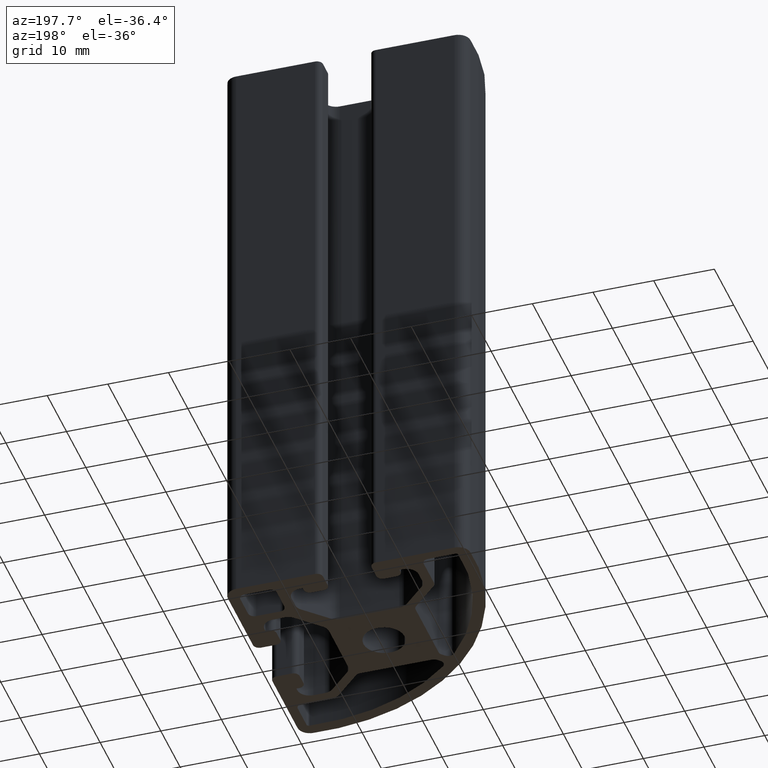
[diagram: clean part render]
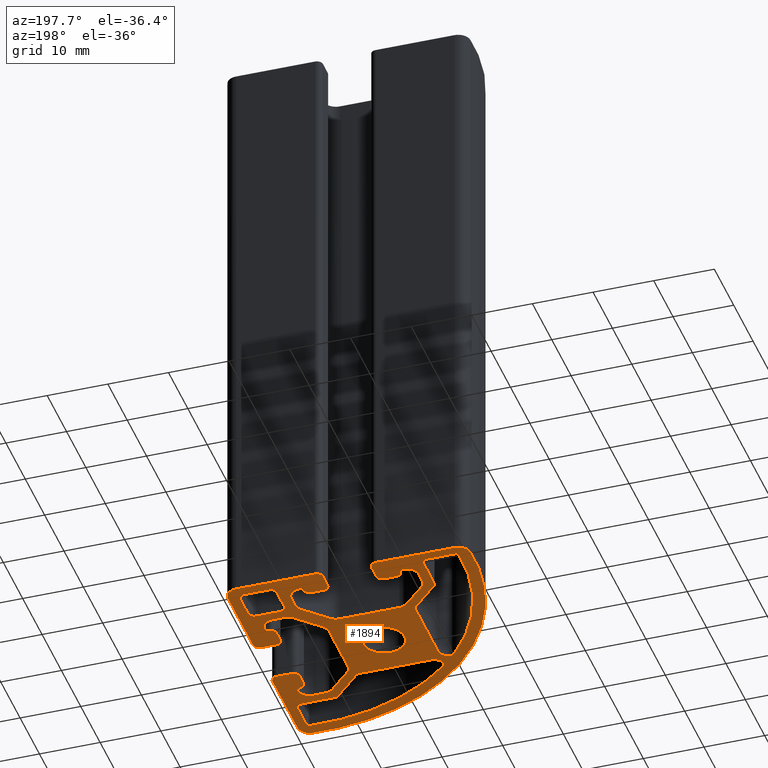
[diagram: same view with one face highlighted and labeled with its STEP entity id]
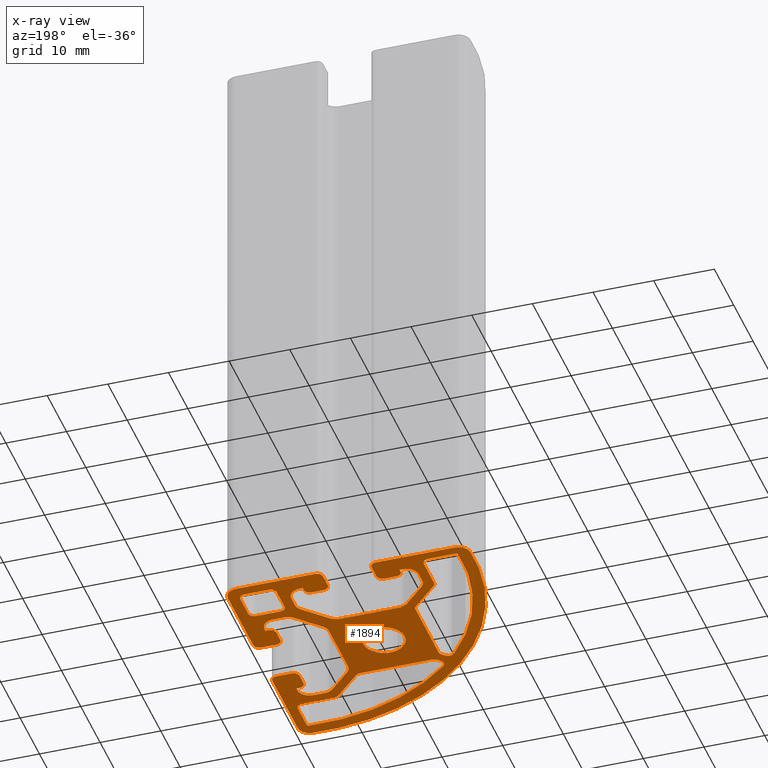
[diagram: x-ray of the same camera — body ghosted, the highlighted face saturated]
A machine part, auxiliary view. The second image highlights one B-rep face of the part: STEP entity #1894.
The next image is the same camera in x-ray: the body ghosted, the highlighted face saturated — about 0% of this face is hidden behind the body in this view.
In plain terms, the highlighted planar face has unit normal (0, 0, 1).
Its self-contained STEP definition (entity closure, byte-faithful):
#20=FACE_BOUND('',#360,.T.);
#21=FACE_BOUND('',#361,.T.);
#22=FACE_BOUND('',#362,.T.);
#23=FACE_BOUND('',#363,.T.);
#25=CIRCLE('',#1900,1.);
#27=CIRCLE('',#1904,1.);
#29=CIRCLE('',#1908,0.400000000000001);
#31=CIRCLE('',#1911,34.);
#33=CIRCLE('',#1914,1.);
#35=CIRCLE('',#1918,1.);
#37=CIRCLE('',#1922,1.00000000000001);
#39=CIRCLE('',#1926,0.999999999999993);
#41=CIRCLE('',#1930,1.);
#43=CIRCLE('',#1934,1.);
#45=CIRCLE('',#1937,34.0000000000857);
#47=CIRCLE('',#1940,0.4);
#49=CIRCLE('',#1944,1.);
#51=CIRCLE('',#1948,1.);
#53=CIRCLE('',#1951,3.4);
#54=CIRCLE('',#1953,36.);
#57=CIRCLE('',#1957,1.);
#59=CIRCLE('',#1960,1.);
#61=CIRCLE('',#1964,1.);
#63=CIRCLE('',#1968,1.);
#65=CIRCLE('',#1973,1.99999600810224);
#67=CIRCLE('',#1977,1.99999600810224);
#69=CIRCLE('',#1981,1.99999600810224);
#71=CIRCLE('',#1985,1.99999600810224);
#73=CIRCLE('',#1989,1.99999600810225);
#75=CIRCLE('',#1993,1.99999600810224);
#77=CIRCLE('',#1998,1.);
#79=CIRCLE('',#2002,1.);
#81=CIRCLE('',#2006,1.);
#83=CIRCLE('',#2010,1.);
#85=CIRCLE('',#2014,1.);
#87=CIRCLE('',#2019,1.99999600810224);
#89=CIRCLE('',#2023,1.99999600810224);
#91=CIRCLE('',#2027,1.99999600810225);
#93=CIRCLE('',#2031,1.99999600810224);
#95=CIRCLE('',#2035,1.99999600810225);
#97=CIRCLE('',#2039,1.99999600810225);
#99=CIRCLE('',#2044,1.);
#101=CIRCLE('',#2048,1.);
#103=CIRCLE('',#2052,1.);
#105=CIRCLE('',#2056,1.);
#107=CIRCLE('',#2060,1.);
#109=CIRCLE('',#2064,1.);
#111=CIRCLE('',#2068,1.);
#115=CIRCLE('',#2078,2.);
#116=CIRCLE('',#2080,2.);
#117=CIRCLE('',#2083,2.);
#259=FACE_OUTER_BOUND('',#359,.T.);
#359=EDGE_LOOP('',(#1659,#1660,#1661,#1662,#1663,#1664,#1665,#1666,#1667,
#1668,#1669,#1670,#1671,#1672,#1673,#1674,#1675,#1676,#1677,#1678,#1679,
#1680,#1681,#1682,#1683,#1684,#1685,#1686,#1687,#1688,#1689,#1690,#1691,
#1692,#1693,#1694,#1695,#1696,#1697,#1698,#1699,#1700,#1701,#1702,#1703,
#1704,#1705,#1706,#1707,#1708,#1709,#1710,#1711,#1712,#1713,#1714,#1715,
#1716,#1717,#1718));
#360=EDGE_LOOP('',(#1719,#1720,#1721,#1722,#1723,#1724,#1725,#1726,#1727,
#1728,#1729,#1730));
#361=EDGE_LOOP('',(#1731,#1732,#1733,#1734,#1735,#1736,#1737,#1738,#1739,
#1740,#1741,#1742));
#362=EDGE_LOOP('',(#1743));
#363=EDGE_LOOP('',(#1744,#1745,#1746,#1747,#1748,#1749,#1750,#1751));
#366=LINE('',#2658,#550);
#370=LINE('',#2670,#554);
#374=LINE('',#2682,#558);
#380=LINE('',#2706,#564);
#384=LINE('',#2718,#568);
#388=LINE('',#2730,#572);
#392=LINE('',#2742,#576);
#396=LINE('',#2754,#580);
#402=LINE('',#2778,#586);
#406=LINE('',#2790,#590);
#416=LINE('',#2832,#600);
#420=LINE('',#2844,#604);
#424=LINE('',#2856,#608);
#427=LINE('',#2862,#611);
#431=LINE('',#2874,#615);
#435=LINE('',#2886,#619);
#439=LINE('',#2898,#623);
#443=LINE('',#2910,#627);
#447=LINE('',#2922,#631);
#451=LINE('',#2934,#635);
#454=LINE('',#2940,#638);
#458=LINE('',#2952,#642);
#461=LINE('',#2961,#645);
#465=LINE('',#2975,#649);
#469=LINE('',#2987,#653);
#473=LINE('',#2999,#657);
#476=LINE('',#3005,#660);
#480=LINE('',#3017,#664);
#484=LINE('',#3029,#668);
#488=LINE('',#3041,#672);
#492=LINE('',#3053,#676);
#496=LINE('',#3065,#680);
#500=LINE('',#3077,#684);
#503=LINE('',#3083,#687);
#507=LINE('',#3095,#691);
#511=LINE('',#3107,#695);
#516=LINE('',#3122,#700);
#521=LINE('',#3135,#705);
#525=LINE('',#3147,#709);
#529=LINE('',#3159,#713);
#532=LINE('',#3168,#716);
#533=LINE('',#3171,#717);
#536=LINE('',#3177,#720);
#541=LINE('',#3186,#725);
#545=LINE('',#3202,#729);
#547=LINE('',#3208,#731);
#550=VECTOR('',#2092,6.10121933088198);
#554=VECTOR('',#2104,5.38076118445748);
#558=VECTOR('',#2116,4.499253328166);
#564=VECTOR('',#2142,0.615466326185701);
#568=VECTOR('',#2154,11.9452272785248);
#572=VECTOR('',#2166,6.10121933088197);
#576=VECTOR('',#2178,11.9452272785248);
#580=VECTOR('',#2190,0.615466326185706);
#586=VECTOR('',#2216,4.49925332816598);
#590=VECTOR('',#2228,5.38076118445749);
#600=VECTOR('',#2270,2.5);
#604=VECTOR('',#2282,2.);
#608=VECTOR('',#2294,0.5);
#611=VECTOR('',#2299,0.500003991897749);
#615=VECTOR('',#2311,1.9038115676834);
#619=VECTOR('',#2323,5.08578974462328);
#623=VECTOR('',#2335,9.80761515157127);
#627=VECTOR('',#2347,5.08578974462329);
#631=VECTOR('',#2359,1.9038115676834);
#635=VECTOR('',#2371,0.500003991897748);
#638=VECTOR('',#2376,0.499999999999987);
#642=VECTOR('',#2388,2.00000000000001);
#645=VECTOR('',#2399,2.49999999999999);
#649=VECTOR('',#2411,2.5);
#653=VECTOR('',#2423,2.);
#657=VECTOR('',#2435,0.499999999999994);
#660=VECTOR('',#2440,0.500003991897758);
#664=VECTOR('',#2452,1.90381156768339);
#668=VECTOR('',#2464,5.08578974462329);
#672=VECTOR('',#2476,9.80761515157127);
#676=VECTOR('',#2488,5.08578974462328);
#680=VECTOR('',#2500,1.90381156768339);
#684=VECTOR('',#2512,0.500008218613461);
#687=VECTOR('',#2517,0.499999751365252);
#691=VECTOR('',#2529,2.00000000000001);
#695=VECTOR('',#2541,2.5);
#700=VECTOR('',#2554,4.);
#705=VECTOR('',#2567,4.00000000000001);
#709=VECTOR('',#2579,4.);
#713=VECTOR('',#2591,4.);
#716=VECTOR('',#2602,4.18510259352965);
#717=VECTOR('',#2605,12.9999960154547);
#720=VECTOR('',#2610,13.0000039845453);
#725=VECTOR('',#2617,13.0000002421704);
#729=VECTOR('',#2639,13.0000039845452);
#731=VECTOR('',#2647,4.18503525331706);
#734=VERTEX_POINT('',#2655);
#735=VERTEX_POINT('',#2657);
#737=VERTEX_POINT('',#2663);
#739=VERTEX_POINT('',#2669);
#741=VERTEX_POINT('',#2675);
#743=VERTEX_POINT('',#2681);
#745=VERTEX_POINT('',#2687);
#747=VERTEX_POINT('',#2693);
#749=VERTEX_POINT('',#2699);
#751=VERTEX_POINT('',#2705);
#753=VERTEX_POINT('',#2711);
#755=VERTEX_POINT('',#2717);
#758=VERTEX_POINT('',#2727);
#759=VERTEX_POINT('',#2729);
#761=VERTEX_POINT('',#2735);
#763=VERTEX_POINT('',#2741);
#765=VERTEX_POINT('',#2747);
#767=VERTEX_POINT('',#2753);
#769=VERTEX_POINT('',#2759);
#771=VERTEX_POINT('',#2765);
#773=VERTEX_POINT('',#2771);
#775=VERTEX_POINT('',#2777);
#777=VERTEX_POINT('',#2783);
#779=VERTEX_POINT('',#2789);
#781=VERTEX_POINT('',#2798);
#782=VERTEX_POINT('',#2801);
#784=VERTEX_POINT('',#2804);
#788=VERTEX_POINT('',#2813);
#789=VERTEX_POINT('',#2815);
#792=VERTEX_POINT('',#2822);
#793=VERTEX_POINT('',#2824);
#795=VERTEX_POINT('',#2830);
#797=VERTEX_POINT('',#2836);
#799=VERTEX_POINT('',#2842);
#801=VERTEX_POINT('',#2848);
#803=VERTEX_POINT('',#2854);
#805=VERTEX_POINT('',#2860);
#807=VERTEX_POINT('',#2866);
#809=VERTEX_POINT('',#2872);
#811=VERTEX_POINT('',#2878);
#813=VERTEX_POINT('',#2884);
#815=VERTEX_POINT('',#2890);
#817=VERTEX_POINT('',#2896);
#819=VERTEX_POINT('',#2902);
#821=VERTEX_POINT('',#2908);
#823=VERTEX_POINT('',#2914);
#825=VERTEX_POINT('',#2920);
#827=VERTEX_POINT('',#2926);
#829=VERTEX_POINT('',#2932);
#831=VERTEX_POINT('',#2938);
#833=VERTEX_POINT('',#2944);
#835=VERTEX_POINT('',#2950);
#837=VERTEX_POINT('',#2956);
#840=VERTEX_POINT('',#2966);
#841=VERTEX_POINT('',#2968);
#843=VERTEX_POINT('',#2974);
#845=VERTEX_POINT('',#2980);
#847=VERTEX_POINT('',#2986);
#849=VERTEX_POINT('',#2992);
#851=VERTEX_POINT('',#2998);
#853=VERTEX_POINT('',#3004);
#855=VERTEX_POINT('',#3010);
#857=VERTEX_POINT('',#3016);
#859=VERTEX_POINT('',#3022);
#861=VERTEX_POINT('',#3028);
#863=VERTEX_POINT('',#3034);
#865=VERTEX_POINT('',#3040);
#867=VERTEX_POINT('',#3046);
#869=VERTEX_POINT('',#3052);
#871=VERTEX_POINT('',#3058);
#873=VERTEX_POINT('',#3064);
#875=VERTEX_POINT('',#3070);
#877=VERTEX_POINT('',#3076);
#879=VERTEX_POINT('',#3082);
#881=VERTEX_POINT('',#3088);
#883=VERTEX_POINT('',#3094);
#885=VERTEX_POINT('',#3100);
#887=VERTEX_POINT('',#3106);
#889=VERTEX_POINT('',#3112);
#892=VERTEX_POINT('',#3119);
#893=VERTEX_POINT('',#3121);
#895=VERTEX_POINT('',#3127);
#897=VERTEX_POINT('',#3133);
#899=VERTEX_POINT('',#3139);
#901=VERTEX_POINT('',#3145);
#903=VERTEX_POINT('',#3151);
#905=VERTEX_POINT('',#3157);
#907=VERTEX_POINT('',#3166);
#908=VERTEX_POINT('',#3170);
#910=VERTEX_POINT('',#3176);
#913=VERTEX_POINT('',#3184);
#916=VERTEX_POINT('',#3200);
#917=VERTEX_POINT('',#3204);
#920=EDGE_CURVE('',#735,#734,#366,.T.);
#923=EDGE_CURVE('',#737,#735,#25,.T.);
#926=EDGE_CURVE('',#739,#737,#370,.T.);
#929=EDGE_CURVE('',#741,#739,#27,.T.);
#932=EDGE_CURVE('',#743,#741,#374,.T.);
#935=EDGE_CURVE('',#745,#743,#29,.T.);
#938=EDGE_CURVE('',#747,#745,#31,.T.);
#941=EDGE_CURVE('',#749,#747,#33,.T.);
#944=EDGE_CURVE('',#751,#749,#380,.T.);
#947=EDGE_CURVE('',#753,#751,#35,.T.);
#950=EDGE_CURVE('',#755,#753,#384,.T.);
#953=EDGE_CURVE('',#734,#755,#37,.T.);
#956=EDGE_CURVE('',#759,#758,#388,.T.);
#959=EDGE_CURVE('',#761,#759,#39,.T.);
#962=EDGE_CURVE('',#763,#761,#392,.T.);
#965=EDGE_CURVE('',#765,#763,#41,.T.);
#968=EDGE_CURVE('',#767,#765,#396,.T.);
#971=EDGE_CURVE('',#769,#767,#43,.T.);
#974=EDGE_CURVE('',#771,#769,#45,.T.);
#977=EDGE_CURVE('',#773,#771,#47,.T.);
#980=EDGE_CURVE('',#775,#773,#402,.T.);
#983=EDGE_CURVE('',#777,#775,#49,.T.);
#986=EDGE_CURVE('',#779,#777,#406,.T.);
#989=EDGE_CURVE('',#758,#779,#51,.T.);
#991=EDGE_CURVE('',#781,#781,#53,.T.);
#993=EDGE_CURVE('',#784,#782,#54,.T.);
#998=EDGE_CURVE('',#789,#788,#57,.T.);
#1002=EDGE_CURVE('',#793,#792,#59,.T.);
#1006=EDGE_CURVE('',#792,#795,#416,.T.);
#1009=EDGE_CURVE('',#795,#797,#61,.T.);
#1012=EDGE_CURVE('',#797,#799,#420,.T.);
#1015=EDGE_CURVE('',#799,#801,#63,.T.);
#1018=EDGE_CURVE('',#801,#803,#424,.T.);
#1021=EDGE_CURVE('',#803,#805,#427,.T.);
#1024=EDGE_CURVE('',#805,#807,#65,.T.);
#1027=EDGE_CURVE('',#807,#809,#431,.T.);
#1030=EDGE_CURVE('',#809,#811,#67,.T.);
#1033=EDGE_CURVE('',#811,#813,#435,.T.);
#1036=EDGE_CURVE('',#813,#815,#69,.T.);
#1039=EDGE_CURVE('',#815,#817,#439,.T.);
#1042=EDGE_CURVE('',#817,#819,#71,.T.);
#1045=EDGE_CURVE('',#819,#821,#443,.T.);
#1048=EDGE_CURVE('',#821,#823,#73,.T.);
#1051=EDGE_CURVE('',#823,#825,#447,.T.);
#1054=EDGE_CURVE('',#825,#827,#75,.T.);
#1057=EDGE_CURVE('',#827,#829,#451,.T.);
#1060=EDGE_CURVE('',#829,#831,#454,.T.);
#1063=EDGE_CURVE('',#831,#833,#77,.T.);
#1066=EDGE_CURVE('',#833,#835,#458,.T.);
#1069=EDGE_CURVE('',#835,#837,#79,.T.);
#1071=EDGE_CURVE('',#837,#789,#461,.T.);
#1074=EDGE_CURVE('',#841,#840,#81,.T.);
#1077=EDGE_CURVE('',#843,#841,#465,.T.);
#1080=EDGE_CURVE('',#845,#843,#83,.T.);
#1083=EDGE_CURVE('',#847,#845,#469,.T.);
#1086=EDGE_CURVE('',#849,#847,#85,.T.);
#1089=EDGE_CURVE('',#851,#849,#473,.T.);
#1092=EDGE_CURVE('',#853,#851,#476,.T.);
#1095=EDGE_CURVE('',#855,#853,#87,.T.);
#1098=EDGE_CURVE('',#857,#855,#480,.T.);
#1101=EDGE_CURVE('',#859,#857,#89,.T.);
#1104=EDGE_CURVE('',#861,#859,#484,.T.);
#1107=EDGE_CURVE('',#863,#861,#91,.T.);
#1110=EDGE_CURVE('',#865,#863,#488,.T.);
#1113=EDGE_CURVE('',#867,#865,#93,.T.);
#1116=EDGE_CURVE('',#869,#867,#492,.T.);
#1119=EDGE_CURVE('',#871,#869,#95,.T.);
#1122=EDGE_CURVE('',#873,#871,#496,.T.);
#1125=EDGE_CURVE('',#875,#873,#97,.T.);
#1128=EDGE_CURVE('',#877,#875,#500,.T.);
#1131=EDGE_CURVE('',#879,#877,#503,.T.);
#1134=EDGE_CURVE('',#881,#879,#99,.T.);
#1137=EDGE_CURVE('',#883,#881,#507,.T.);
#1140=EDGE_CURVE('',#885,#883,#101,.T.);
#1143=EDGE_CURVE('',#887,#885,#511,.T.);
#1146=EDGE_CURVE('',#889,#887,#103,.T.);
#1150=EDGE_CURVE('',#893,#892,#516,.T.);
#1154=EDGE_CURVE('',#892,#895,#105,.T.);
#1157=EDGE_CURVE('',#895,#897,#521,.T.);
#1160=EDGE_CURVE('',#897,#899,#107,.T.);
#1163=EDGE_CURVE('',#899,#901,#525,.T.);
#1166=EDGE_CURVE('',#901,#903,#109,.T.);
#1169=EDGE_CURVE('',#903,#905,#529,.T.);
#1171=EDGE_CURVE('',#905,#893,#111,.T.);
#1174=EDGE_CURVE('',#782,#907,#532,.T.);
#1175=EDGE_CURVE('',#908,#793,#533,.T.);
#1178=EDGE_CURVE('',#910,#889,#536,.T.);
#1183=EDGE_CURVE('',#840,#913,#541,.T.);
#1189=EDGE_CURVE('',#907,#910,#115,.T.);
#1190=EDGE_CURVE('',#913,#908,#116,.T.);
#1192=EDGE_CURVE('',#788,#916,#545,.T.);
#1194=EDGE_CURVE('',#916,#917,#117,.T.);
#1195=EDGE_CURVE('',#917,#784,#547,.T.);
#1659=ORIENTED_EDGE('',*,*,#993,.T.);
#1660=ORIENTED_EDGE('',*,*,#1174,.T.);
#1661=ORIENTED_EDGE('',*,*,#1189,.T.);
#1662=ORIENTED_EDGE('',*,*,#1178,.T.);
#1663=ORIENTED_EDGE('',*,*,#1146,.T.);
#1664=ORIENTED_EDGE('',*,*,#1143,.T.);
#1665=ORIENTED_EDGE('',*,*,#1140,.T.);
#1666=ORIENTED_EDGE('',*,*,#1137,.T.);
#1667=ORIENTED_EDGE('',*,*,#1134,.T.);
#1668=ORIENTED_EDGE('',*,*,#1131,.T.);
#1669=ORIENTED_EDGE('',*,*,#1128,.T.);
#1670=ORIENTED_EDGE('',*,*,#1125,.T.);
#1671=ORIENTED_EDGE('',*,*,#1122,.T.);
#1672=ORIENTED_EDGE('',*,*,#1119,.T.);
#1673=ORIENTED_EDGE('',*,*,#1116,.T.);
#1674=ORIENTED_EDGE('',*,*,#1113,.T.);
#1675=ORIENTED_EDGE('',*,*,#1110,.T.);
#1676=ORIENTED_EDGE('',*,*,#1107,.T.);
#1677=ORIENTED_EDGE('',*,*,#1104,.T.);
#1678=ORIENTED_EDGE('',*,*,#1101,.T.);
#1679=ORIENTED_EDGE('',*,*,#1098,.T.);
#1680=ORIENTED_EDGE('',*,*,#1095,.T.);
#1681=ORIENTED_EDGE('',*,*,#1092,.T.);
#1682=ORIENTED_EDGE('',*,*,#1089,.T.);
#1683=ORIENTED_EDGE('',*,*,#1086,.T.);
#1684=ORIENTED_EDGE('',*,*,#1083,.T.);
#1685=ORIENTED_EDGE('',*,*,#1080,.T.);
#1686=ORIENTED_EDGE('',*,*,#1077,.T.);
#1687=ORIENTED_EDGE('',*,*,#1074,.T.);
#1688=ORIENTED_EDGE('',*,*,#1183,.T.);
#1689=ORIENTED_EDGE('',*,*,#1190,.T.);
#1690=ORIENTED_EDGE('',*,*,#1175,.T.);
#1691=ORIENTED_EDGE('',*,*,#1002,.T.);
#1692=ORIENTED_EDGE('',*,*,#1006,.T.);
#1693=ORIENTED_EDGE('',*,*,#1009,.T.);
#1694=ORIENTED_EDGE('',*,*,#1012,.T.);
#1695=ORIENTED_EDGE('',*,*,#1015,.T.);
#1696=ORIENTED_EDGE('',*,*,#1018,.T.);
#1697=ORIENTED_EDGE('',*,*,#1021,.T.);
#1698=ORIENTED_EDGE('',*,*,#1024,.T.);
#1699=ORIENTED_EDGE('',*,*,#1027,.T.);
#1700=ORIENTED_EDGE('',*,*,#1030,.T.);
#1701=ORIENTED_EDGE('',*,*,#1033,.T.);
#1702=ORIENTED_EDGE('',*,*,#1036,.T.);
#1703=ORIENTED_EDGE('',*,*,#1039,.T.);
#1704=ORIENTED_EDGE('',*,*,#1042,.T.);
#1705=ORIENTED_EDGE('',*,*,#1045,.T.);
#1706=ORIENTED_EDGE('',*,*,#1048,.T.);
#1707=ORIENTED_EDGE('',*,*,#1051,.T.);
#1708=ORIENTED_EDGE('',*,*,#1054,.T.);
#1709=ORIENTED_EDGE('',*,*,#1057,.T.);
#1710=ORIENTED_EDGE('',*,*,#1060,.T.);
#1711=ORIENTED_EDGE('',*,*,#1063,.T.);
#1712=ORIENTED_EDGE('',*,*,#1066,.T.);
#1713=ORIENTED_EDGE('',*,*,#1069,.T.);
#1714=ORIENTED_EDGE('',*,*,#1071,.T.);
#1715=ORIENTED_EDGE('',*,*,#998,.T.);
#1716=ORIENTED_EDGE('',*,*,#1192,.T.);
#1717=ORIENTED_EDGE('',*,*,#1194,.T.);
#1718=ORIENTED_EDGE('',*,*,#1195,.T.);
#1719=ORIENTED_EDGE('',*,*,#920,.T.);
#1720=ORIENTED_EDGE('',*,*,#953,.T.);
#1721=ORIENTED_EDGE('',*,*,#950,.T.);
#1722=ORIENTED_EDGE('',*,*,#947,.T.);
#1723=ORIENTED_EDGE('',*,*,#944,.T.);
#1724=ORIENTED_EDGE('',*,*,#941,.T.);
#1725=ORIENTED_EDGE('',*,*,#938,.T.);
#1726=ORIENTED_EDGE('',*,*,#935,.T.);
#1727=ORIENTED_EDGE('',*,*,#932,.T.);
#1728=ORIENTED_EDGE('',*,*,#929,.T.);
#1729=ORIENTED_EDGE('',*,*,#926,.T.);
#1730=ORIENTED_EDGE('',*,*,#923,.T.);
#1731=ORIENTED_EDGE('',*,*,#956,.T.);
#1732=ORIENTED_EDGE('',*,*,#989,.T.);
#1733=ORIENTED_EDGE('',*,*,#986,.T.);
#1734=ORIENTED_EDGE('',*,*,#983,.T.);
#1735=ORIENTED_EDGE('',*,*,#980,.T.);
#1736=ORIENTED_EDGE('',*,*,#977,.T.);
#1737=ORIENTED_EDGE('',*,*,#974,.T.);
#1738=ORIENTED_EDGE('',*,*,#971,.T.);
#1739=ORIENTED_EDGE('',*,*,#968,.T.);
#1740=ORIENTED_EDGE('',*,*,#965,.T.);
#1741=ORIENTED_EDGE('',*,*,#962,.T.);
#1742=ORIENTED_EDGE('',*,*,#959,.T.);
#1743=ORIENTED_EDGE('',*,*,#991,.T.);
#1744=ORIENTED_EDGE('',*,*,#1150,.T.);
#1745=ORIENTED_EDGE('',*,*,#1154,.T.);
#1746=ORIENTED_EDGE('',*,*,#1157,.T.);
#1747=ORIENTED_EDGE('',*,*,#1160,.T.);
#1748=ORIENTED_EDGE('',*,*,#1163,.T.);
#1749=ORIENTED_EDGE('',*,*,#1166,.T.);
#1750=ORIENTED_EDGE('',*,*,#1169,.T.);
#1751=ORIENTED_EDGE('',*,*,#1171,.T.);
#1799=PLANE('',#2085);
#1894=ADVANCED_FACE('',(#259,#20,#21,#22,#23),#1799,.F.);
#1900=AXIS2_PLACEMENT_3D('',#2664,#2098,#2099);
#1904=AXIS2_PLACEMENT_3D('',#2676,#2110,#2111);
#1908=AXIS2_PLACEMENT_3D('',#2688,#2122,#2123);
#1911=AXIS2_PLACEMENT_3D('',#2694,#2129,#2130);
#1914=AXIS2_PLACEMENT_3D('',#2700,#2136,#2137);
#1918=AXIS2_PLACEMENT_3D('',#2712,#2148,#2149);
#1922=AXIS2_PLACEMENT_3D('',#2722,#2160,#2161);
#1926=AXIS2_PLACEMENT_3D('',#2736,#2172,#2173);
#1930=AXIS2_PLACEMENT_3D('',#2748,#2184,#2185);
#1934=AXIS2_PLACEMENT_3D('',#2760,#2196,#2197);
#1937=AXIS2_PLACEMENT_3D('',#2766,#2203,#2204);
#1940=AXIS2_PLACEMENT_3D('',#2772,#2210,#2211);
#1944=AXIS2_PLACEMENT_3D('',#2784,#2222,#2223);
#1948=AXIS2_PLACEMENT_3D('',#2794,#2234,#2235);
#1951=AXIS2_PLACEMENT_3D('',#2799,#2240,#2241);
#1953=AXIS2_PLACEMENT_3D('',#2805,#2245,#2246);
#1957=AXIS2_PLACEMENT_3D('',#2816,#2255,#2256);
#1960=AXIS2_PLACEMENT_3D('',#2825,#2263,#2264);
#1964=AXIS2_PLACEMENT_3D('',#2838,#2276,#2277);
#1968=AXIS2_PLACEMENT_3D('',#2850,#2288,#2289);
#1973=AXIS2_PLACEMENT_3D('',#2868,#2305,#2306);
#1977=AXIS2_PLACEMENT_3D('',#2880,#2317,#2318);
#1981=AXIS2_PLACEMENT_3D('',#2892,#2329,#2330);
#1985=AXIS2_PLACEMENT_3D('',#2904,#2341,#2342);
#1989=AXIS2_PLACEMENT_3D('',#2916,#2353,#2354);
#1993=AXIS2_PLACEMENT_3D('',#2928,#2365,#2366);
#1998=AXIS2_PLACEMENT_3D('',#2946,#2382,#2383);
#2002=AXIS2_PLACEMENT_3D('',#2958,#2394,#2395);
#2006=AXIS2_PLACEMENT_3D('',#2969,#2405,#2406);
#2010=AXIS2_PLACEMENT_3D('',#2981,#2417,#2418);
#2014=AXIS2_PLACEMENT_3D('',#2993,#2429,#2430);
#2019=AXIS2_PLACEMENT_3D('',#3011,#2446,#2447);
#2023=AXIS2_PLACEMENT_3D('',#3023,#2458,#2459);
#2027=AXIS2_PLACEMENT_3D('',#3035,#2470,#2471);
#2031=AXIS2_PLACEMENT_3D('',#3047,#2482,#2483);
#2035=AXIS2_PLACEMENT_3D('',#3059,#2494,#2495);
#2039=AXIS2_PLACEMENT_3D('',#3071,#2506,#2507);
#2044=AXIS2_PLACEMENT_3D('',#3089,#2523,#2524);
#2048=AXIS2_PLACEMENT_3D('',#3101,#2535,#2536);
#2052=AXIS2_PLACEMENT_3D('',#3113,#2547,#2548);
#2056=AXIS2_PLACEMENT_3D('',#3129,#2561,#2562);
#2060=AXIS2_PLACEMENT_3D('',#3141,#2573,#2574);
#2064=AXIS2_PLACEMENT_3D('',#3153,#2585,#2586);
#2068=AXIS2_PLACEMENT_3D('',#3162,#2596,#2597);
#2078=AXIS2_PLACEMENT_3D('',#3196,#2630,#2631);
#2080=AXIS2_PLACEMENT_3D('',#3198,#2634,#2635);
#2083=AXIS2_PLACEMENT_3D('',#3206,#2643,#2644);
#2085=AXIS2_PLACEMENT_3D('',#3209,#2648,#2649);
#2092=DIRECTION('',(-0.707106781186548,0.707106781186547,0.));
#2098=DIRECTION('center_axis',(0.,0.,-1.));
#2099=DIRECTION('ref_axis',(0.70710678118654,0.707106781186555,0.));
#2104=DIRECTION('',(-1.,3.30131142882037E-15,0.));
#2110=DIRECTION('center_axis',(0.,0.,1.));
#2111=DIRECTION('ref_axis',(1.,6.66133814775092E-15,0.));
#2116=DIRECTION('',(-9.87028685559884E-16,1.,0.));
#2122=DIRECTION('center_axis',(0.,0.,1.));
#2123=DIRECTION('ref_axis',(0.0613875833322587,-0.998114003815509,0.));
#2129=DIRECTION('center_axis',(0.,0.,1.));
#2130=DIRECTION('ref_axis',(-0.667484642442465,-0.744623564026452,0.));
#2136=DIRECTION('center_axis',(0.,0.,1.));
#2137=DIRECTION('ref_axis',(-0.707106781186563,0.707106781186533,0.));
#2142=DIRECTION('',(-0.707106781186544,-0.707106781186551,0.));
#2148=DIRECTION('center_axis',(0.,0.,1.));
#2149=DIRECTION('ref_axis',(-2.22044604925031E-15,1.,0.));
#2154=DIRECTION('',(-1.,2.78828438858035E-16,0.));
#2160=DIRECTION('center_axis',(0.,0.,1.));
#2161=DIRECTION('ref_axis',(0.707106781186548,0.707106781186548,0.));
#2166=DIRECTION('',(-0.707106781186548,0.707106781186547,0.));
#2172=DIRECTION('center_axis',(0.,0.,1.));
#2173=DIRECTION('ref_axis',(-1.,7.77156117237614E-15,0.));
#2178=DIRECTION('',(0.,1.,0.));
#2184=DIRECTION('center_axis',(0.,0.,1.));
#2185=DIRECTION('ref_axis',(-0.707106781186548,0.707106781186548,0.));
#2190=DIRECTION('',(0.707106781186549,0.707106781186546,0.));
#2196=DIRECTION('center_axis',(0.,0.,1.));
#2197=DIRECTION('ref_axis',(0.744623564026449,0.667484642442468,0.));
#2203=DIRECTION('center_axis',(0.,0.,1.));
#2204=DIRECTION('ref_axis',(0.998114003815571,-0.0613875833312433,0.));
#2210=DIRECTION('center_axis',(0.,0.,1.));
#2211=DIRECTION('ref_axis',(-2.77555756156289E-14,-1.,0.));
#2216=DIRECTION('',(-1.,3.94811474223955E-15,0.));
#2222=DIRECTION('center_axis',(0.,0.,1.));
#2223=DIRECTION('ref_axis',(-1.,-6.66133814775093E-15,0.));
#2228=DIRECTION('',(-8.2532785720509E-16,1.,0.));
#2234=DIRECTION('center_axis',(0.,0.,-1.));
#2235=DIRECTION('ref_axis',(-1.,-1.33226762955019E-14,0.));
#2240=DIRECTION('center_axis',(0.,0.,1.));
#2241=DIRECTION('ref_axis',(-1.,0.,0.));
#2245=DIRECTION('center_axis',(0.,0.,-1.));
#2246=DIRECTION('ref_axis',(0.998158153158456,-0.0606654867556555,0.));
#2255=DIRECTION('center_axis',(0.,0.,-1.));
#2256=DIRECTION('ref_axis',(-1.,3.27515792264426E-14,0.));
#2263=DIRECTION('center_axis',(0.,0.,-1.));
#2264=DIRECTION('ref_axis',(1.77635683940025E-14,1.,0.));
#2270=DIRECTION('',(-1.,4.44089209850063E-16,0.));
#2276=DIRECTION('center_axis',(0.,0.,-1.));
#2277=DIRECTION('ref_axis',(1.,-7.77156117237609E-15,0.));
#2282=DIRECTION('',(2.22044604925032E-15,1.,0.));
#2288=DIRECTION('center_axis',(0.,0.,-1.));
#2289=DIRECTION('ref_axis',(2.22044604925033E-15,-1.,0.));
#2294=DIRECTION('',(1.,1.55431223447522E-14,0.));
#2299=DIRECTION('',(4.44085664360934E-15,1.,0.));
#2305=DIRECTION('center_axis',(0.,0.,1.));
#2306=DIRECTION('ref_axis',(1.,-3.33067572173394E-15,0.));
#2311=DIRECTION('',(-1.,0.,0.));
#2317=DIRECTION('center_axis',(0.,0.,1.));
#2318=DIRECTION('ref_axis',(2.22045048115596E-15,1.,0.));
#2323=DIRECTION('',(-0.707106781186547,-0.707106781186548,0.));
#2329=DIRECTION('center_axis',(0.,0.,1.));
#2330=DIRECTION('ref_axis',(-0.707106781186546,0.707106781186549,0.));
#2335=DIRECTION('',(-1.92440171509013E-15,-1.,0.));
#2341=DIRECTION('center_axis',(0.,0.,1.));
#2342=DIRECTION('ref_axis',(-1.,-3.05311941158944E-15,0.));
#2347=DIRECTION('',(0.707106781186548,-0.707106781186547,0.));
#2353=DIRECTION('center_axis',(0.,0.,1.));
#2354=DIRECTION('ref_axis',(-0.707106781186544,-0.707106781186551,0.));
#2359=DIRECTION('',(1.,2.33263216480211E-15,0.));
#2365=DIRECTION('center_axis',(0.,0.,1.));
#2366=DIRECTION('ref_axis',(4.44090096231192E-15,-1.,0.));
#2371=DIRECTION('',(4.44085664360935E-15,1.,0.));
#2376=DIRECTION('',(-1.,2.22044604925037E-14,0.));
#2382=DIRECTION('center_axis',(0.,0.,-1.));
#2383=DIRECTION('ref_axis',(1.,8.88178419700132E-15,0.));
#2388=DIRECTION('',(0.,1.,0.));
#2394=DIRECTION('center_axis',(0.,0.,-1.));
#2395=DIRECTION('ref_axis',(-4.44089209850063E-15,-1.,0.));
#2399=DIRECTION('',(1.,1.33226762955019E-15,0.));
#2405=DIRECTION('center_axis',(0.,0.,-1.));
#2406=DIRECTION('ref_axis',(3.88577962004834E-15,-1.,0.));
#2411=DIRECTION('',(3.33066907387547E-15,1.,0.));
#2417=DIRECTION('center_axis',(0.,0.,-1.));
#2418=DIRECTION('ref_axis',(1.,0.,0.));
#2423=DIRECTION('',(-1.,0.,0.));
#2429=DIRECTION('center_axis',(0.,0.,-1.));
#2430=DIRECTION('ref_axis',(1.11022302462516E-15,1.,0.));
#2435=DIRECTION('',(0.,-1.,0.));
#2440=DIRECTION('',(-1.,-2.22042832180463E-14,0.));
#2446=DIRECTION('center_axis',(0.,0.,1.));
#2447=DIRECTION('ref_axis',(1.,-4.44090096231192E-15,0.));
#2452=DIRECTION('',(-1.16631608240106E-15,1.,0.));
#2458=DIRECTION('center_axis',(0.,0.,1.));
#2459=DIRECTION('ref_axis',(0.707106781186548,-0.707106781186548,0.));
#2464=DIRECTION('',(0.707106781186547,0.707106781186548,0.));
#2470=DIRECTION('center_axis',(0.,0.,1.));
#2471=DIRECTION('ref_axis',(0.,-1.,0.));
#2476=DIRECTION('',(1.,-7.92400706213581E-16,0.));
#2482=DIRECTION('center_axis',(0.,0.,1.));
#2483=DIRECTION('ref_axis',(-0.707106781186548,-0.707106781186547,0.));
#2488=DIRECTION('',(0.707106781186548,-0.707106781186548,0.));
#2494=DIRECTION('center_axis',(0.,0.,1.));
#2495=DIRECTION('ref_axis',(-1.,0.,0.));
#2500=DIRECTION('',(0.,-1.,0.));
#2506=DIRECTION('center_axis',(0.,0.,1.));
#2507=DIRECTION('ref_axis',(-3.88578834202293E-15,1.,0.));
#2512=DIRECTION('',(-1.,1.33224573112479E-14,0.));
#2517=DIRECTION('',(-4.4408943068219E-15,1.,0.));
#2523=DIRECTION('center_axis',(0.,0.,-1.));
#2524=DIRECTION('ref_axis',(1.,-4.44089209850061E-15,0.));
#2529=DIRECTION('',(-1.,-4.4408920985006E-15,0.));
#2535=DIRECTION('center_axis',(0.,0.,-1.));
#2536=DIRECTION('ref_axis',(-4.44089209850062E-15,1.,0.));
#2541=DIRECTION('',(0.,-1.,0.));
#2547=DIRECTION('center_axis',(0.,0.,-1.));
#2548=DIRECTION('ref_axis',(-1.,0.,0.));
#2554=DIRECTION('',(5.55111512312578E-16,1.,0.));
#2561=DIRECTION('center_axis',(0.,0.,1.));
#2562=DIRECTION('ref_axis',(-1.,4.44089209850062E-15,0.));
#2567=DIRECTION('',(-1.,5.55111512312577E-16,0.));
#2573=DIRECTION('center_axis',(0.,0.,1.));
#2574=DIRECTION('ref_axis',(0.,-1.,0.));
#2579=DIRECTION('',(-1.11022302462516E-15,-1.,0.));
#2585=DIRECTION('center_axis',(0.,0.,1.));
#2586=DIRECTION('ref_axis',(1.,0.,0.));
#2591=DIRECTION('',(1.,-5.55111512312578E-16,0.));
#2596=DIRECTION('center_axis',(0.,0.,1.));
#2597=DIRECTION('ref_axis',(-2.22044604925032E-15,1.,0.));
#2602=DIRECTION('',(0.,1.,0.));
#2605=DIRECTION('',(0.,-1.,0.));
#2610=DIRECTION('',(1.,0.,0.));
#2617=DIRECTION('',(1.,0.,0.));
#2630=DIRECTION('center_axis',(0.,0.,-1.));
#2631=DIRECTION('ref_axis',(0.,-1.,0.));
#2634=DIRECTION('center_axis',(0.,0.,-1.));
#2635=DIRECTION('ref_axis',(-1.,0.,0.));
#2639=DIRECTION('',(0.,-1.,0.));
#2643=DIRECTION('center_axis',(0.,0.,-1.));
#2644=DIRECTION('ref_axis',(0.,1.,0.));
#2647=DIRECTION('',(-1.,0.,0.));
#2648=DIRECTION('center_axis',(0.,0.,1.));
#2649=DIRECTION('ref_axis',(1.,0.,0.));
#2655=CARTESIAN_POINT('',(6.99791847198287,-7.49289321881346,0.));
#2657=CARTESIAN_POINT('',(11.312132034356,-11.8071067811866,0.));
#2658=CARTESIAN_POINT('',(5.53232233047034,-6.02729707730093,0.));
#2663=CARTESIAN_POINT('',(12.0192388155425,-12.1,0.));
#2664=CARTESIAN_POINT('Origin',(12.0192388155425,-11.1,0.));
#2669=CARTESIAN_POINT('',(17.4,-12.1,0.));
#2670=CARTESIAN_POINT('',(8.69999999999998,-12.1,0.));
#2675=CARTESIAN_POINT('',(18.4,-13.1,0.));
#2676=CARTESIAN_POINT('Origin',(17.4,-13.1,0.));
#2681=CARTESIAN_POINT('',(18.4,-17.599253328166,0.));
#2682=CARTESIAN_POINT('',(18.4,-8.799626664083,0.));
#2687=CARTESIAN_POINT('',(18.0245550333329,-17.9984989296922,0.));
#2688=CARTESIAN_POINT('Origin',(18.,-17.599253328166,0.));
#2693=CARTESIAN_POINT('',(-6.75710064300875,-9.37982397686433,0.));
#2694=CARTESIAN_POINT('Origin',(15.9373772000351,15.937377200035,0.));
#2699=CARTESIAN_POINT('',(-6.79672278175286,-7.92809363165134,0.));
#2700=CARTESIAN_POINT('Origin',(-6.08961600056629,-8.63520041283787,0.));
#2705=CARTESIAN_POINT('',(-6.36152236891498,-7.49289321881345,0.));
#2706=CARTESIAN_POINT('',(-2.89791847198289,-4.02928932188133,0.));
#2711=CARTESIAN_POINT('',(-5.65441558772843,-7.2,0.));
#2712=CARTESIAN_POINT('Origin',(-5.65441558772843,-8.2,0.));
#2717=CARTESIAN_POINT('',(6.29081169079632,-7.2,0.));
#2718=CARTESIAN_POINT('',(3.14540584539816,-7.2,0.));
#2722=CARTESIAN_POINT('Origin',(6.29081169079632,-8.20000000000001,0.));
#2727=CARTESIAN_POINT('',(-11.8071067811865,11.312132034356,0.));
#2729=CARTESIAN_POINT('',(-7.49289321881345,6.99791847198287,0.));
#2730=CARTESIAN_POINT('',(-3.87019029611437,3.37521554928379,0.));
#2735=CARTESIAN_POINT('',(-7.2,6.29081169079632,0.));
#2736=CARTESIAN_POINT('Origin',(-8.19999999999999,6.29081169079632,0.));
#2741=CARTESIAN_POINT('',(-7.2,-5.65441558772843,0.));
#2742=CARTESIAN_POINT('',(-7.2,-2.82720779386422,0.));
#2747=CARTESIAN_POINT('',(-7.49289321881345,-6.36152236891497,0.));
#2748=CARTESIAN_POINT('Origin',(-8.2,-5.65441558772842,0.));
#2753=CARTESIAN_POINT('',(-7.92809363165134,-6.79672278175286,0.));
#2754=CARTESIAN_POINT('',(-4.24688952830028,-3.11551867840182,0.));
#2759=CARTESIAN_POINT('',(-9.37982397686433,-6.75710064300876,0.));
#2760=CARTESIAN_POINT('Origin',(-8.63520041283788,-6.08961600056629,0.));
#2765=CARTESIAN_POINT('',(-17.9984989296922,18.0245550333329,0.));
#2766=CARTESIAN_POINT('Origin',(15.9373772001227,15.9373772000654,0.));
#2771=CARTESIAN_POINT('',(-17.599253328166,18.4,0.));
#2772=CARTESIAN_POINT('Origin',(-17.599253328166,18.,0.));
#2777=CARTESIAN_POINT('',(-13.1,18.4,0.));
#2778=CARTESIAN_POINT('',(-6.54999999999997,18.4,0.));
#2783=CARTESIAN_POINT('',(-12.1,17.4,0.));
#2784=CARTESIAN_POINT('Origin',(-13.1,17.4,0.));
#2789=CARTESIAN_POINT('',(-12.1,12.0192388155425,0.));
#2790=CARTESIAN_POINT('',(-12.1,6.00961940777125,0.));
#2794=CARTESIAN_POINT('Origin',(-11.1,12.0192388155425,0.));
#2798=CARTESIAN_POINT('',(3.4,4.163799117101E-16,0.));
#2799=CARTESIAN_POINT('Origin',(0.,0.,0.));
#2801=CARTESIAN_POINT('',(-20.,13.8148974064703,0.));
#2804=CARTESIAN_POINT('',(13.814964746683,-20.,0.));
#2805=CARTESIAN_POINT('Origin',(15.9373769578646,15.9373811845803,0.));
#2813=CARTESIAN_POINT('',(19.9999997578296,-4.99999601545476,0.));
#2815=CARTESIAN_POINT('',(18.9999997578296,-3.99999601545472,0.));
#2816=CARTESIAN_POINT('Origin',(18.9999997578296,-4.99999601545472,0.));
#2822=CARTESIAN_POINT('',(18.9999997578296,4.00000398454527,0.));
#2824=CARTESIAN_POINT('',(19.9999997578296,5.00000398454528,0.));
#2825=CARTESIAN_POINT('Origin',(18.9999997578296,5.00000398454527,0.));
#2830=CARTESIAN_POINT('',(16.4999997578296,4.00000398454527,0.));
#2832=CARTESIAN_POINT('',(9.49999987891479,4.00000398454527,0.));
#2836=CARTESIAN_POINT('',(15.4999997578296,5.00000398454527,0.));
#2838=CARTESIAN_POINT('Origin',(16.4999997578296,5.00000398454527,0.));
#2842=CARTESIAN_POINT('',(15.4999997578296,7.00000398454527,0.));
#2844=CARTESIAN_POINT('',(15.4999997578296,2.50000199227262,0.));
#2848=CARTESIAN_POINT('',(16.4999997578296,8.00000398454527,0.));
#2850=CARTESIAN_POINT('Origin',(16.4999997578296,7.00000398454527,0.));
#2854=CARTESIAN_POINT('',(16.9999997578296,8.00000398454527,0.));
#2856=CARTESIAN_POINT('',(8.24999987891473,8.00000398454514,0.));
#2860=CARTESIAN_POINT('',(16.9999997578296,8.50000797644302,0.));
#2862=CARTESIAN_POINT('',(16.9999997578296,4.0000019922726,0.));
#2866=CARTESIAN_POINT('',(15.0000037497274,10.5000039845453,0.));
#2868=CARTESIAN_POINT('Origin',(15.0000037497273,8.50000797644303,0.));
#2872=CARTESIAN_POINT('',(13.096192182044,10.5000039845453,0.));
#2874=CARTESIAN_POINT('',(7.50000187486368,10.5000039845453,0.));
#2878=CARTESIAN_POINT('',(11.6819814423688,9.91421871611815,0.));
#2880=CARTESIAN_POINT('Origin',(13.096192182044,8.50000797644303,0.));
#2884=CARTESIAN_POINT('',(8.08578502625671,6.31802230000603,0.));
#2886=CARTESIAN_POINT('',(6.28293140274709,4.5151686764964,0.));
#2890=CARTESIAN_POINT('',(7.49999975782959,4.90381156033091,0.));
#2892=CARTESIAN_POINT('Origin',(9.49999576593183,4.90381156033091,0.));
#2896=CARTESIAN_POINT('',(7.49999975782957,-4.90380359124036,0.));
#2898=CARTESIAN_POINT('',(7.49999975782958,2.45190578016545,0.));
#2902=CARTESIAN_POINT('',(8.0857850262567,-6.31801433091548,0.));
#2904=CARTESIAN_POINT('Origin',(9.49999576593181,-4.90380359124035,0.));
#2908=CARTESIAN_POINT('',(11.6819814423688,-9.9142107470276,0.));
#2910=CARTESIAN_POINT('',(4.48483518696365,-2.71706449162244,0.));
#2914=CARTESIAN_POINT('',(13.0961921820439,-10.4999960154547,0.));
#2916=CARTESIAN_POINT('Origin',(13.0961921820439,-8.50000000735247,0.));
#2920=CARTESIAN_POINT('',(15.0000037497273,-10.4999960154547,0.));
#2922=CARTESIAN_POINT('',(6.54809609102198,-10.4999960154547,0.));
#2926=CARTESIAN_POINT('',(16.9999997578296,-8.50000000735247,0.));
#2928=CARTESIAN_POINT('Origin',(15.0000037497273,-8.50000000735248,0.));
#2932=CARTESIAN_POINT('',(16.9999997578296,-7.99999601545473,0.));
#2934=CARTESIAN_POINT('',(16.9999997578296,-4.25000000367627,0.));
#2938=CARTESIAN_POINT('',(16.4999997578296,-7.99999601545471,0.));
#2940=CARTESIAN_POINT('',(8.4999998789147,-7.99999601545454,0.));
#2944=CARTESIAN_POINT('',(15.4999997578296,-6.99999601545473,0.));
#2946=CARTESIAN_POINT('Origin',(16.4999997578296,-6.99999601545472,0.));
#2950=CARTESIAN_POINT('',(15.4999997578296,-4.99999601545472,0.));
#2952=CARTESIAN_POINT('',(15.4999997578296,-3.49999800772737,0.));
#2956=CARTESIAN_POINT('',(16.4999997578296,-3.99999601545473,0.));
#2958=CARTESIAN_POINT('Origin',(16.4999997578296,-4.99999601545472,0.));
#2961=CARTESIAN_POINT('',(8.24999987891479,-3.99999601545474,0.));
#2966=CARTESIAN_POINT('',(4.9999997578296,20.,0.));
#2968=CARTESIAN_POINT('',(3.9999997578296,19.0000039845453,0.));
#2969=CARTESIAN_POINT('Origin',(4.9999997578296,19.0000039845453,0.));
#2974=CARTESIAN_POINT('',(3.99999975782959,16.5000039845453,0.));
#2975=CARTESIAN_POINT('',(3.99999975782956,8.25000199227263,0.));
#2980=CARTESIAN_POINT('',(4.9999997578296,15.5000039845453,0.));
#2981=CARTESIAN_POINT('Origin',(4.99999975782959,16.5000039845453,0.));
#2986=CARTESIAN_POINT('',(6.99999975782959,15.5000039845453,0.));
#2987=CARTESIAN_POINT('',(3.4999998789148,15.5000039845453,0.));
#2992=CARTESIAN_POINT('',(7.99999975782959,16.5000039845453,0.));
#2993=CARTESIAN_POINT('Origin',(6.99999975782959,16.5000039845453,0.));
#2998=CARTESIAN_POINT('',(7.99999975782959,17.0000039845453,0.));
#2999=CARTESIAN_POINT('',(7.99999975782959,8.50000199227263,0.));
#3004=CARTESIAN_POINT('',(8.50000374972735,17.0000039845453,0.));
#3005=CARTESIAN_POINT('',(4.25000187486349,17.0000039845452,0.));
#3010=CARTESIAN_POINT('',(10.4999997578296,15.000007976443,0.));
#3011=CARTESIAN_POINT('Origin',(8.50000374972735,15.000007976443,0.));
#3016=CARTESIAN_POINT('',(10.4999997578296,13.0961964087596,0.));
#3017=CARTESIAN_POINT('',(10.4999997578296,6.54809820437983,0.));
#3022=CARTESIAN_POINT('',(9.91421448940248,11.6819856690845,0.));
#3023=CARTESIAN_POINT('Origin',(8.50000374972736,13.0961964087596,0.));
#3028=CARTESIAN_POINT('',(6.31801807329035,8.0857892529724,0.));
#3029=CARTESIAN_POINT('',(2.71706624172467,4.48483742140671,0.));
#3034=CARTESIAN_POINT('',(4.90380733361523,7.50000398454527,0.));
#3035=CARTESIAN_POINT('Origin',(4.90380733361523,9.49999999264752,0.));
#3040=CARTESIAN_POINT('',(-4.90380781795604,7.50000398454528,0.));
#3041=CARTESIAN_POINT('',(-2.45190390897802,7.50000398454528,0.));
#3046=CARTESIAN_POINT('',(-6.31801855763116,8.0857892529724,0.));
#3047=CARTESIAN_POINT('Origin',(-4.90380781795604,9.49999999264752,0.));
#3052=CARTESIAN_POINT('',(-9.91421497374328,11.6819856690845,0.));
#3053=CARTESIAN_POINT('',(-4.51516481303633,6.28293550837757,0.));
#3058=CARTESIAN_POINT('',(-10.5000002421704,13.0961964087596,0.));
#3059=CARTESIAN_POINT('Origin',(-8.50000423406816,13.0961964087596,0.));
#3064=CARTESIAN_POINT('',(-10.5000002421704,15.000007976443,0.));
#3065=CARTESIAN_POINT('',(-10.5000002421704,7.50000398822151,0.));
#3070=CARTESIAN_POINT('',(-8.50000423406816,17.0000039845453,0.));
#3071=CARTESIAN_POINT('Origin',(-8.50000423406816,15.000007976443,0.));
#3076=CARTESIAN_POINT('',(-7.9999960154547,17.0000039845453,0.));
#3077=CARTESIAN_POINT('',(-3.99999800772724,17.0000039845452,0.));
#3082=CARTESIAN_POINT('',(-7.9999960154547,16.50000423318,0.));
#3083=CARTESIAN_POINT('',(-7.99999601545466,8.25000211658999,0.));
#3088=CARTESIAN_POINT('',(-6.9999960154547,15.50000423318,0.));
#3089=CARTESIAN_POINT('Origin',(-6.9999960154547,16.50000423318,0.));
#3094=CARTESIAN_POINT('',(-4.99999601545469,15.50000423318,0.));
#3095=CARTESIAN_POINT('',(-2.49999800772738,15.50000423318,0.));
#3100=CARTESIAN_POINT('',(-3.99999601545469,16.50000423318,0.));
#3101=CARTESIAN_POINT('Origin',(-4.99999601545469,16.50000423318,0.));
#3106=CARTESIAN_POINT('',(-3.99999601545469,19.00000423318,0.));
#3107=CARTESIAN_POINT('',(-3.99999601545469,9.50000211659001,0.));
#3112=CARTESIAN_POINT('',(-4.9999960154547,20.,0.));
#3113=CARTESIAN_POINT('Origin',(-4.99999601545469,19.00000423318,0.));
#3119=CARTESIAN_POINT('',(18.2,17.2,0.));
#3121=CARTESIAN_POINT('',(18.2,13.2,0.));
#3122=CARTESIAN_POINT('',(18.2,6.59999999999999,0.));
#3127=CARTESIAN_POINT('',(17.2,18.2,0.));
#3129=CARTESIAN_POINT('Origin',(17.2,17.2,0.));
#3133=CARTESIAN_POINT('',(13.2,18.2,0.));
#3135=CARTESIAN_POINT('',(8.60000000000001,18.2,0.));
#3139=CARTESIAN_POINT('',(12.2,17.2,0.));
#3141=CARTESIAN_POINT('Origin',(13.2,17.2,0.));
#3145=CARTESIAN_POINT('',(12.2,13.2,0.));
#3147=CARTESIAN_POINT('',(12.2,8.59999999999999,0.));
#3151=CARTESIAN_POINT('',(13.2,12.2,0.));
#3153=CARTESIAN_POINT('Origin',(13.2,13.2,0.));
#3157=CARTESIAN_POINT('',(17.2,12.2,0.));
#3159=CARTESIAN_POINT('',(6.6,12.2,0.));
#3162=CARTESIAN_POINT('Origin',(17.2,13.2,0.));
#3166=CARTESIAN_POINT('',(-20.,18.,0.));
#3168=CARTESIAN_POINT('',(-20.,9.,0.));
#3170=CARTESIAN_POINT('',(20.,18.,0.));
#3171=CARTESIAN_POINT('',(20.,-9.,0.));
#3176=CARTESIAN_POINT('',(-18.,20.,0.));
#3177=CARTESIAN_POINT('',(9.,20.,0.));
#3184=CARTESIAN_POINT('',(18.,20.,0.));
#3186=CARTESIAN_POINT('',(9.,20.,0.));
#3196=CARTESIAN_POINT('Origin',(-18.,18.,0.));
#3198=CARTESIAN_POINT('Origin',(18.,18.,0.));
#3200=CARTESIAN_POINT('',(20.,-18.,0.));
#3202=CARTESIAN_POINT('',(20.,-9.,0.));
#3204=CARTESIAN_POINT('',(18.,-20.,0.));
#3206=CARTESIAN_POINT('Origin',(18.,-18.,0.));
#3208=CARTESIAN_POINT('',(-9.,-20.,0.));
#3209=CARTESIAN_POINT('Origin',(0.,0.,0.));